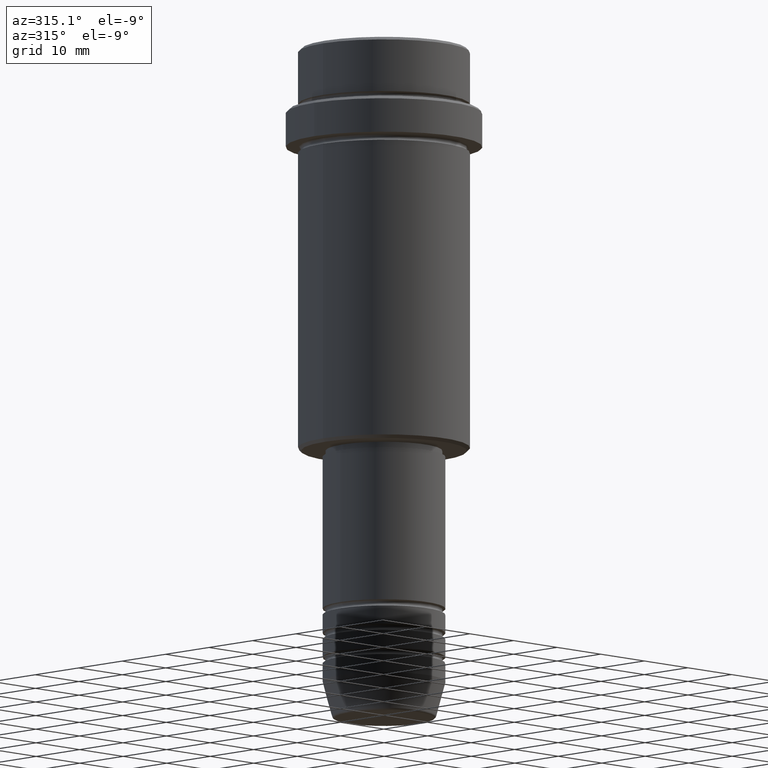
[diagram: clean part render]
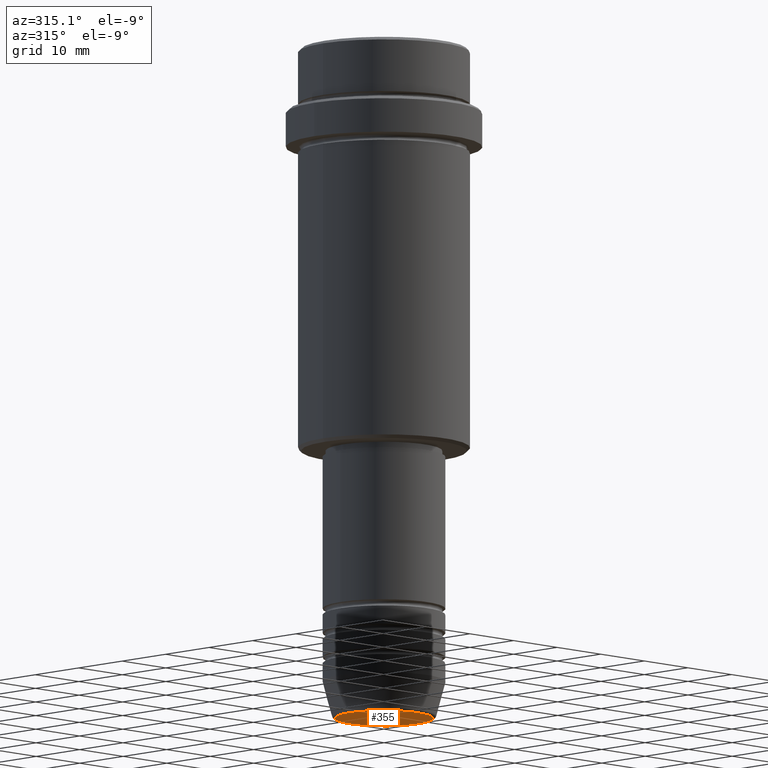
[diagram: same view with one face highlighted and labeled with its STEP entity id]
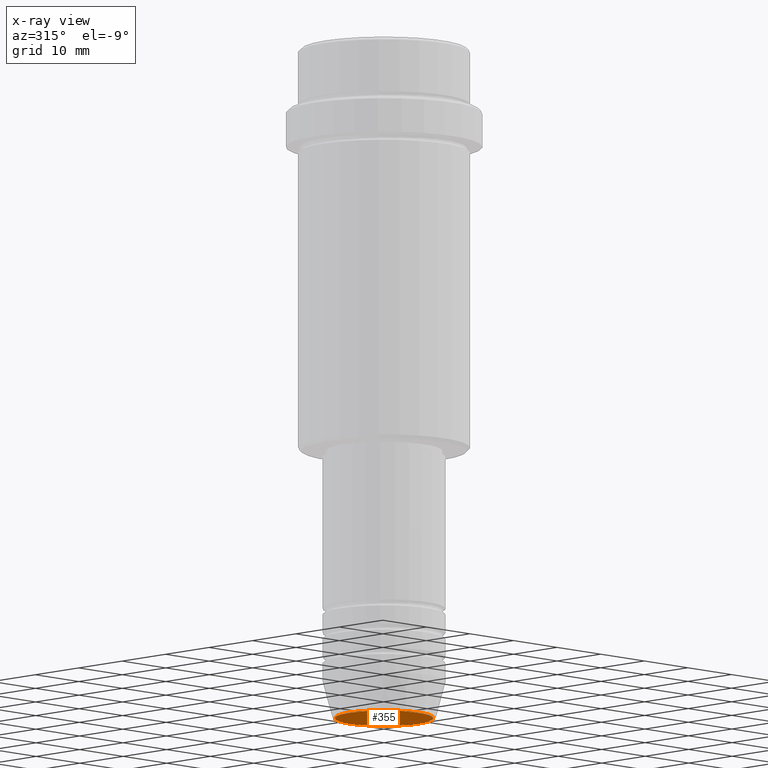
[diagram: x-ray of the same camera — body ghosted, the highlighted face saturated]
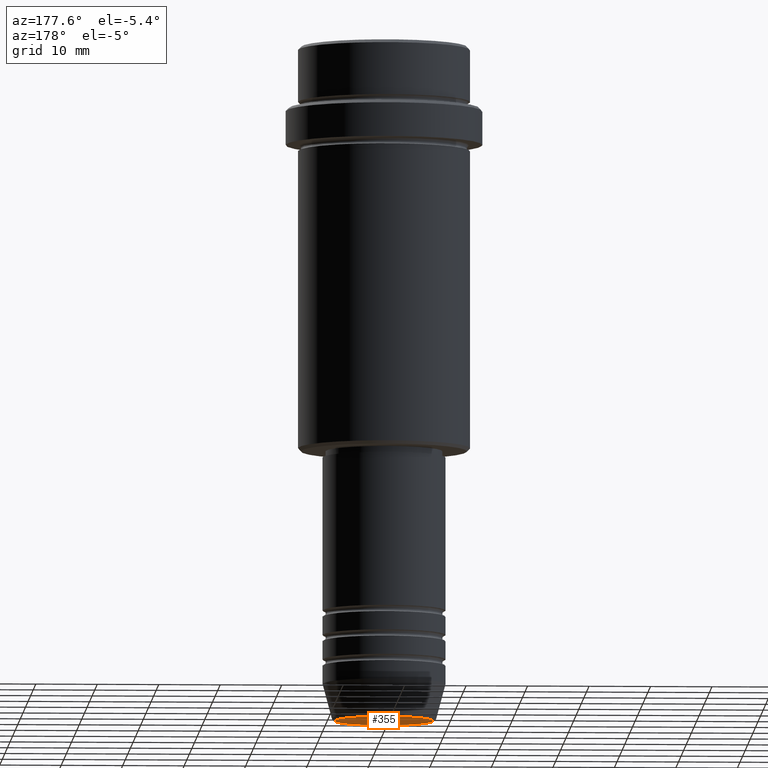
[diagram: same view with one face highlighted and labeled with its STEP entity id]
A machine part, auxiliary view. The second image highlights one B-rep face of the part: STEP entity #355.
The next image is the same camera in x-ray: the body ghosted, the highlighted face saturated — about 0% of this face is hidden behind the body in this view.
A second angle (auxiliary view) of the same face is appended — the face is thin or edge-on in the first view.
In plain terms, the highlighted planar face has unit normal (0, -0, 1).
Its self-contained STEP definition (entity closure, byte-faithful):
#10 = PLANE ( 'NONE',  #23 ) ;
#23 = AXIS2_PLACEMENT_3D ( 'NONE', #983, #1406, #1222 ) ;
#169 = ORIENTED_EDGE ( 'NONE', *, *, #981, .T. ) ;
#231 = DIRECTION ( 'NONE',  ( 1.000000000000000000, 0.000000000000000000, 0.000000000000000000 ) ) ;
#234 = FACE_OUTER_BOUND ( 'NONE', #567, .T. ) ;
#268 = ORIENTED_EDGE ( 'NONE', *, *, #926, .T. ) ;
#350 = DIRECTION ( 'NONE',  ( 0.000000000000000000, 0.000000000000000000, -1.000000000000000000 ) ) ;
#355 = ADVANCED_FACE ( 'NONE', ( #234 ), #10, .F. ) ;
#356 = CIRCLE ( 'NONE', #597, 8.008641351423779753 ) ;
#362 = VERTEX_POINT ( 'NONE', #1302 ) ;
#460 = AXIS2_PLACEMENT_3D ( 'NONE', #1225, #350, #231 ) ;
#483 = CARTESIAN_POINT ( 'NONE',  ( 0.000000000000000000, 0.000000000000000000, -110.0000000000000142 ) ) ;
#506 = VERTEX_POINT ( 'NONE', #814 ) ;
#567 = EDGE_LOOP ( 'NONE', ( #169, #268 ) ) ;
#597 = AXIS2_PLACEMENT_3D ( 'NONE', #483, #1362, #627 ) ;
#627 = DIRECTION ( 'NONE',  ( 1.000000000000000000, 0.000000000000000000, 0.000000000000000000 ) ) ;
#814 = CARTESIAN_POINT ( 'NONE',  ( 8.008641351423779753, 0.000000000000000000, -110.0000000000000142 ) ) ;
#860 = CIRCLE ( 'NONE', #460, 8.008641351423779753 ) ;
#926 = EDGE_CURVE ( 'NONE', #362, #506, #860, .T. ) ;
#981 = EDGE_CURVE ( 'NONE', #506, #362, #356, .T. ) ;
#983 = CARTESIAN_POINT ( 'NONE',  ( 0.000000000000000000, 0.000000000000000000, -110.0000000000000142 ) ) ;
#1222 = DIRECTION ( 'NONE',  ( 1.000000000000000000, 0.000000000000000000, 0.000000000000000000 ) ) ;
#1225 = CARTESIAN_POINT ( 'NONE',  ( 0.000000000000000000, 0.000000000000000000, -110.0000000000000142 ) ) ;
#1302 = CARTESIAN_POINT ( 'NONE',  ( -8.008641351423779753, 1.010348648938493172E-15, -110.0000000000000142 ) ) ;
#1362 = DIRECTION ( 'NONE',  ( 0.000000000000000000, 0.000000000000000000, -1.000000000000000000 ) ) ;
#1406 = DIRECTION ( 'NONE',  ( 0.000000000000000000, -0.000000000000000000, 1.000000000000000000 ) ) ;